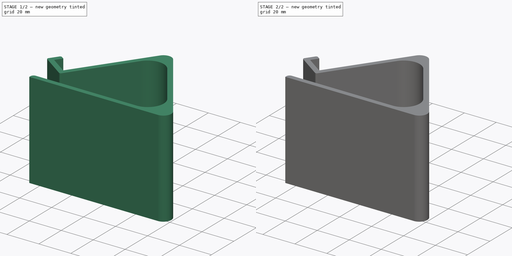
[diagram: build sequence overview — one tinted view per stage of 2, left to right]
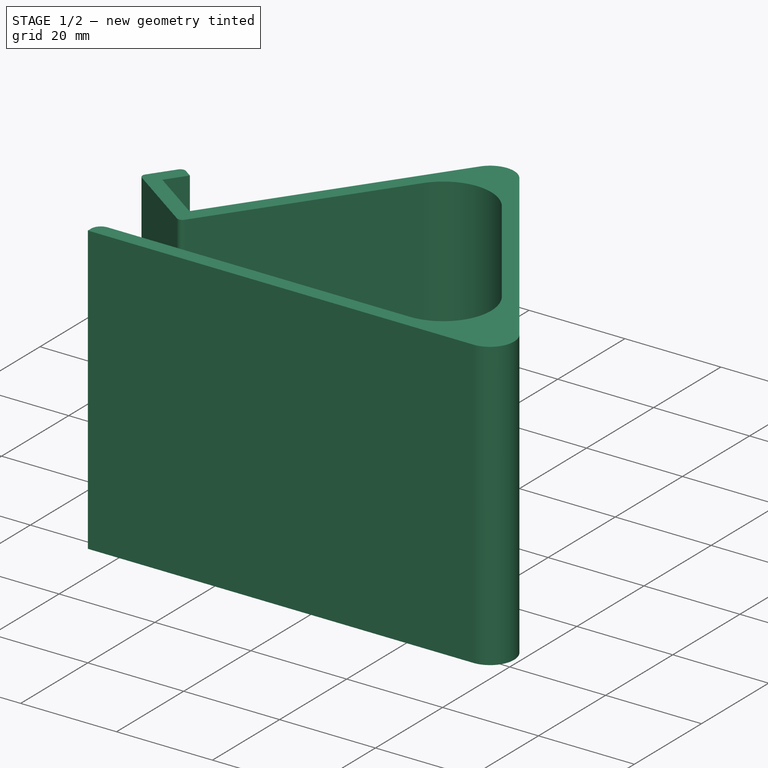
[diagram: stage 1 of 2 — iso view after this stage's code; geometry added in this stage tinted green]
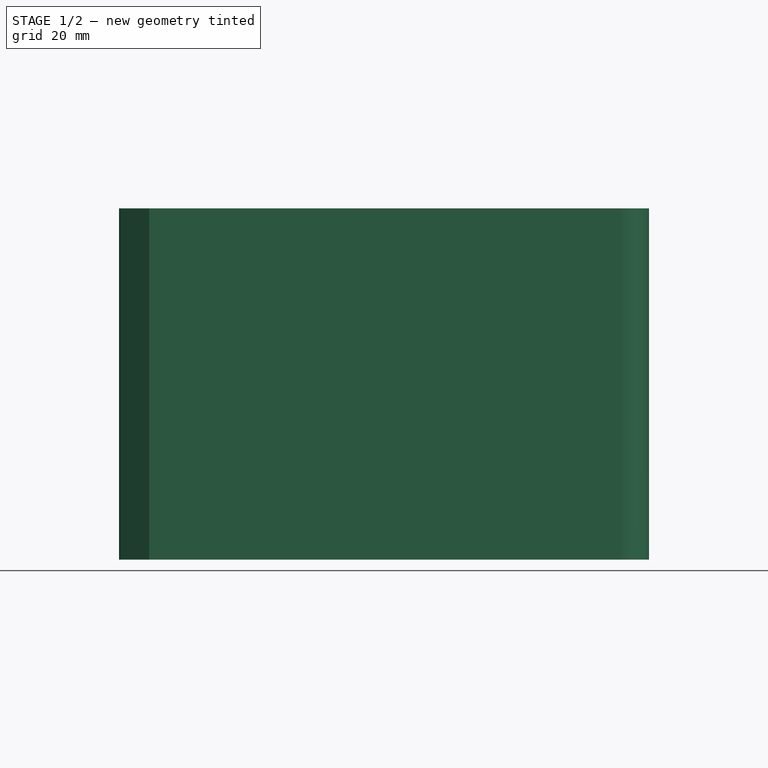
[diagram: stage 1 of 2 — front view after this stage's code; geometry added in this stage tinted green]
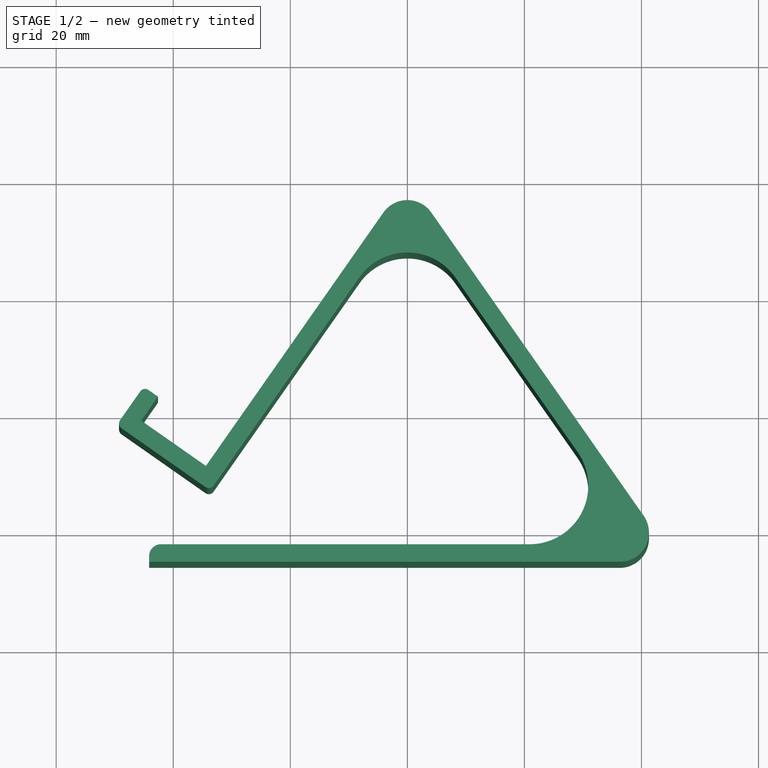
[diagram: stage 1 of 2 — top view after this stage's code; geometry added in this stage tinted green]
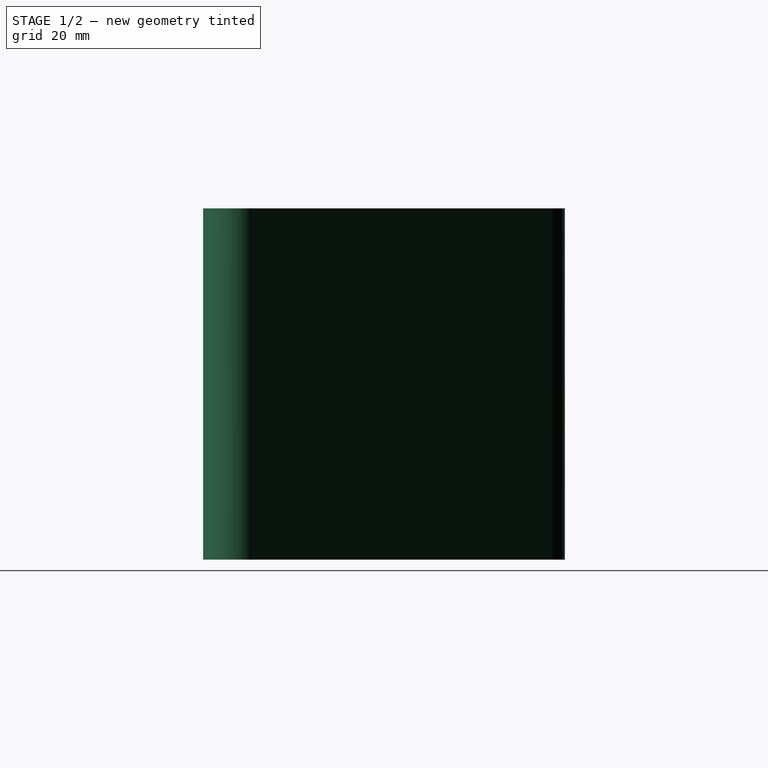
[diagram: stage 1 of 2 — right view after this stage's code; geometry added in this stage tinted green]
FCSTD DOCUMENT  (FreeCAD 0.20R29603 (Git))
Label: phone holder
License: All rights reserved
LicenseURL: http://en.wikipedia.org/wiki/All_rights_reserved
objects: Sketcher::SketchObject×2, PartDesign::Pad×1, PartDesign::Pocket×1, PartDesign::Body×1
note: 7 computed .brp shape members not serialized (recipe doc carries the construction recipe); baked Part::Feature solids carry a one-line shape summary decoded from their .brp

FEATURE [Sketcher::SketchObject] Sketch
  FullyConstrained = true
  MapMode = 5
  Support = -> [XY_Plane]
  sketch-geometry (29):
    g0: LineSegment StartX=-4.09576 StartY=-5.84935 StartZ=0 EndX=-34.4146 EndY=-49.1491 EndZ=0
    g1: LineSegment StartX=-34.4146 StartY=-49.1491 StartZ=0 EndX=-45.4731 EndY=-41.4058 EndZ=0
    g2: LineSegment StartX=-45.4731 StartY=-41.4058 StartZ=0 EndX=-42.6053 EndY=-37.3101 EndZ=0
    g3: LineSegment StartX=-42.6053 StartY=-37.3101 StartZ=0 EndX=-44.2436 EndY=-36.1629 EndZ=0
    g4: LineSegment StartX=-45.6363 StartY=-36.4085 StartZ=0 EndX=-49.0777 EndY=-41.3234 EndZ=0
    g5: LineSegment StartX=-48.8322 StartY=-42.7161 StartZ=0 EndX=-34.497 EndY=-52.7537 EndZ=0
    g6: LineSegment StartX=-33.1043 StartY=-52.5082 StartZ=0 EndX=-8.19152 EndY=-16.929 EndZ=0
    g7: LineSegment StartX=8.19152 StartY=-16.929 StartZ=0 EndX=29.1049 EndY=-46.7964 EndZ=0
    g8: LineSegment StartX=20.9133 StartY=-62.5322 StartZ=0 EndX=-42.1139 EndY=-62.5322 EndZ=0
    g9: LineSegment StartX=-44.1139 StartY=-64.5322 StartZ=0 EndX=-44.1139 EndY=-65.5322 EndZ=0
    g10: LineSegment StartX=-44.1139 StartY=-65.5322 StartZ=0 EndX=36.2812 EndY=-65.5322 EndZ=0
    g11: LineSegment StartX=40.377 StartY=-57.6643 StartZ=0 EndX=4.09576 EndY=-5.84935 EndZ=0
    g12: GeomPoint X=-31.9571 Y=-50.8699 Z=0
    g13: LineSegment StartX=-31.9571 StartY=-50.8699 StartZ=0 EndX=-34.4146 EndY=-49.1491 EndZ=0
    g14: ArcOfCircle CenterX=-1.2e-15 CenterY=-22.6648 CenterZ=0 NormalX=0 NormalY=0 NormalZ=1 AngleXU=0 Radius=10 StartAngle=0.610865 EndAngle=2.53073
    g15: ArcOfCircle CenterX=20.9133 CenterY=-52.5322 CenterZ=0 NormalX=0 NormalY=0 NormalZ=1 AngleXU=0 Radius=10 StartAngle=4.71239 EndAngle=6.89405
    g16: GeomPoint X=40.1232 Y=-62.5322 Z=0
    g17: ArcOfCircle CenterX=-42.1139 CenterY=-64.5322 CenterZ=0 NormalX=0 NormalY=0 NormalZ=1 AngleXU=0 Radius=2 StartAngle=1.5708 EndAngle=3.14159
    g18: GeomPoint X=-44.1139 Y=-62.5322 Z=0
    g19: ArcOfCircle CenterX=-33.9234 CenterY=-51.9346 CenterZ=0 NormalX=0 NormalY=0 NormalZ=1 AngleXU=0 Radius=1 StartAngle=4.10152 EndAngle=5.67232
    g20: GeomPoint X=-33.6779 Y=-53.3273 Z=0
    g21: ArcOfCircle CenterX=-48.2586 CenterY=-41.897 CenterZ=0 NormalX=0 NormalY=0 NormalZ=1 AngleXU=0 Radius=1 StartAngle=2.53073 EndAngle=4.10152
    g22: GeomPoint X=-49.6513 Y=-42.1426 Z=0
    g23: ArcOfCircle CenterX=-44.8171 CenterY=-36.9821 CenterZ=0 NormalX=0 NormalY=0 NormalZ=1 AngleXU=0 Radius=1 StartAngle=0.959931 EndAngle=2.53073
    g24: GeomPoint X=-45.0627 Y=-35.5894 Z=0
    g25: ArcOfCircle CenterX=36.2812 CenterY=-60.5322 CenterZ=0 NormalX=0 NormalY=0 NormalZ=1 AngleXU=0 Radius=5 StartAngle=4.71239 EndAngle=6.89405
    g26: GeomPoint X=45.8861 Y=-65.5322 Z=0
    g27: ArcOfCircle CenterX=2.093e-13 CenterY=-8.71723 CenterZ=0 NormalX=0 NormalY=0 NormalZ=1 AngleXU=0 Radius=5 StartAngle=0.610865 EndAngle=2.53073
    g28: GeomPoint X=0 Y=0 Z=0
  constraints (68):
    c: Coincident(g-1,g28)
    c: Coincident(g0,g1)
    c: Coincident(g1,g2)
    c: Coincident(g2,g3)
    c: Horizontal(g8)
    c: Coincident(g9,g10)
    c: Horizontal(g10)
    c: Distance(g28,g26) = 80
    c: DistanceX(g10,g26) = 90
    c: Vertical(g9)
    c: DistanceY(g9,g18) = 3
    c: Distance(g1) = 13.5
    c: Perpendicular(g1,g0)
    c: Perpendicular(g2,g1)
    c: Perpendicular(g2,g3)
    c: Perpendicular(g4,g3)
    c: Perpendicular(g5,g4)
    c: Distance(g2) = 5
    c: Distance(g3,g24) = 3
    c: Distance(g24,g22) = 8
    c: Parallel(g6,g0)
    c: PointOnObject(g12,g6)
    c: Coincident(g13,g12)
    c: Coincident(g13,g0)
    c: Perpendicular(g6,g13)
    c: Distance(g13) = 3
    c: Parallel(g11,g7)
    c: Symmetric(g6,g7,g-2)
    c: Tangent(g14,g6) = 1.5708
    c: Tangent(g14,g7) = 1.5708
    c: Distance(g0,g28) = 60
    c: PointOnObject(g16,g8)
    c: PointOnObject(g16,g7)
    c: Tangent(g8,g15) = 1.5708
    c: Tangent(g7,g15) = 1.5708
    c: Equal(g14,g15)
    c: PointOnObject(g18,g9)
    c: PointOnObject(g18,g8)
    c: Tangent(g9,g17) = -1.5708
    c: Tangent(g8,g17) = -1.5708
    c: DistanceY(g9,g9) = 1
    c: PointOnObject(g20,g5)
    c: PointOnObject(g20,g6)
    c: Tangent(g5,g19) = -1.5708
    c: Tangent(g6,g19) = -1.5708
    c: PointOnObject(g22,g4)
    c: PointOnObject(g22,g5)
    c: Tangent(g4,g21) = -1.5708
    c: Tangent(g5,g21) = -1.5708
    c: PointOnObject(g24,g4)
    c: PointOnObject(g24,g3)
    c: Tangent(g4,g23) = -1.5708
    c: Tangent(g3,g23) = -1.5708
    c: Equal(g23,g21)
    c: Equal(g21,g19)
    c: Diameter(g23) = 2
    c: Diameter(g14) = 20
    c: PointOnObject(g26,g11)
    c: PointOnObject(g26,g10)
    c: Tangent(g11,g25) = -1.5708
    c: Tangent(g10,g25) = -1.5708
    c: PointOnObject(g28,g11)
    c: PointOnObject(g28,g0)
    c: Tangent(g11,g27) = -1.5708
    c: Tangent(g0,g27) = -1.5708
    c: Diameter(g27) = 10
    c: Angle(g0,g11) = 1.22173
    c: Equal(g25,g27)
FEATURE [PartDesign::Pad] Pad
  Direction = (0,0,1)
  Length = 60
  Length2 = 10
  Profile = -> Sketch
  ReferenceAxis = -> Sketch [N_Axis]
  Type = 0
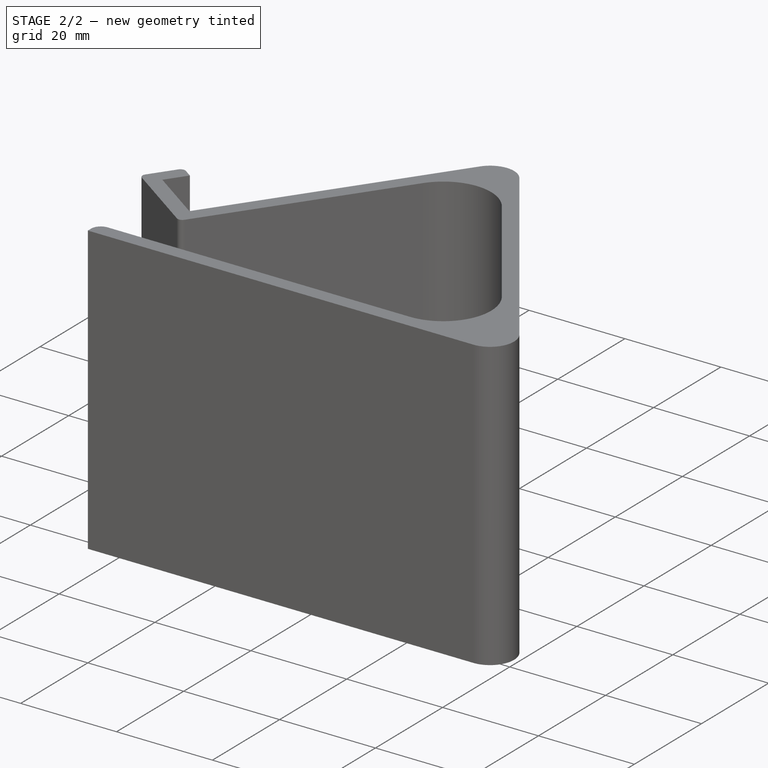
[diagram: stage 2 of 2 — iso view after this stage's code; geometry added in this stage tinted green]
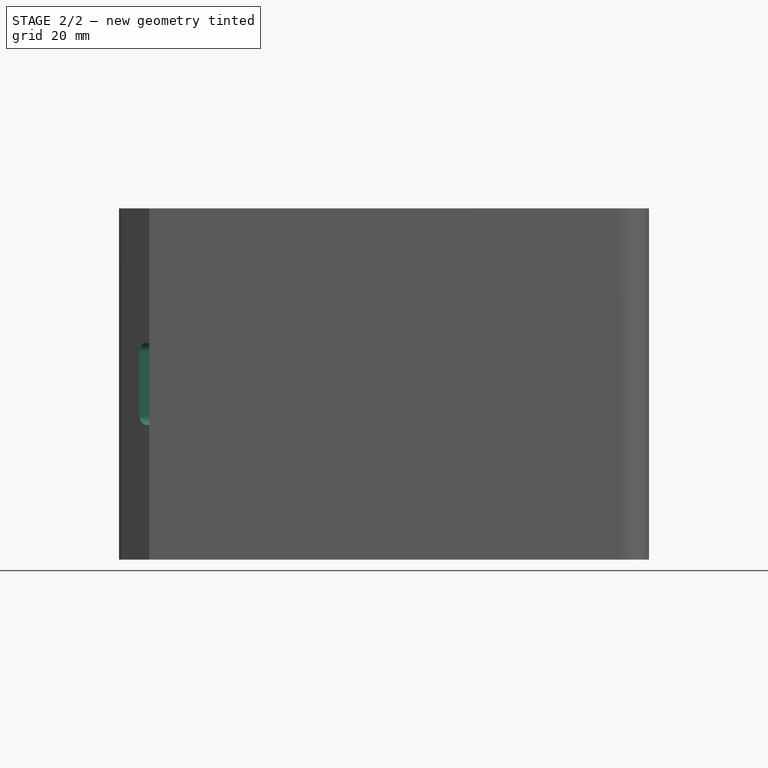
[diagram: stage 2 of 2 — front view after this stage's code; geometry added in this stage tinted green]
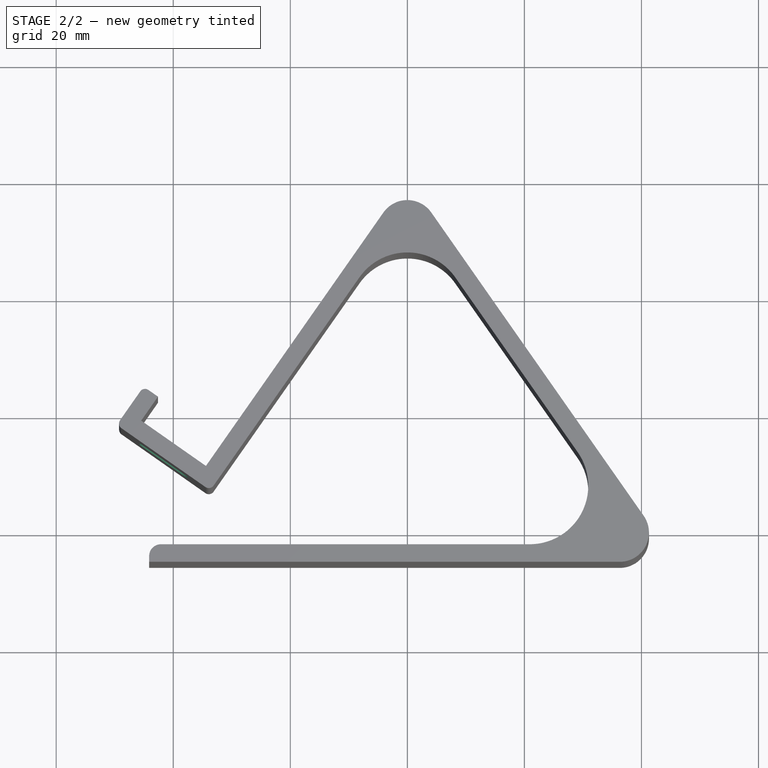
[diagram: stage 2 of 2 — top view after this stage's code; geometry added in this stage tinted green]
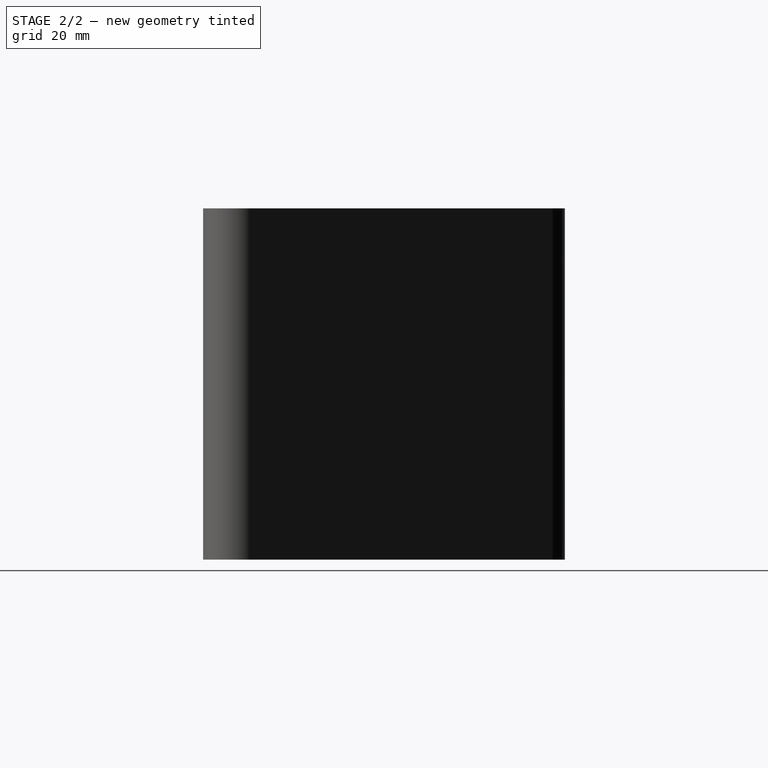
[diagram: stage 2 of 2 — right view after this stage's code; geometry added in this stage tinted green]
FEATURE [Sketcher::SketchObject] Sketch001
  ExternalGeometry = -> [Pad]
  FullyConstrained = true
  MapMode = 5
  Placement = pos=(-34.4146,-49.1491,0) rot=(0.217607,0.690162,0.690162;2.71306rad)
  Support = -> [Pad]
  sketch-geometry (13):
    g0: LineSegment StartX=1.75 StartY=24.5 StartZ=0 EndX=1.75 EndY=35.5 EndZ=0
    g1: LineSegment StartX=3.25 StartY=37 StartZ=0 EndX=10.25 EndY=37 EndZ=0
    g2: LineSegment StartX=11.75 StartY=35.5 StartZ=0 EndX=11.75 EndY=24.5 EndZ=0
    g3: LineSegment StartX=10.25 StartY=23 StartZ=0 EndX=3.25 EndY=23 EndZ=0
    g4: GeomPoint X=6.75 Y=30 Z=0
    g5: ArcOfCircle CenterX=3.25 CenterY=35.5 CenterZ=0 NormalX=0 NormalY=0 NormalZ=1 AngleXU=0 Radius=1.5 StartAngle=1.5708 EndAngle=3.14159
    g6: GeomPoint X=1.75 Y=37 Z=0
    g7: ArcOfCircle CenterX=3.25 CenterY=24.5 CenterZ=0 NormalX=0 NormalY=0 NormalZ=1 AngleXU=0 Radius=1.5 StartAngle=3.14159 EndAngle=4.71239
    g8: GeomPoint X=1.75 Y=23 Z=0
    g9: ArcOfCircle CenterX=10.25 CenterY=24.5 CenterZ=0 NormalX=0 NormalY=0 NormalZ=1 AngleXU=0 Radius=1.5 StartAngle=4.71239 EndAngle=6.28319
    g10: GeomPoint X=11.75 Y=23 Z=0
    g11: ArcOfCircle CenterX=10.25 CenterY=35.5 CenterZ=0 NormalX=0 NormalY=0 NormalZ=1 AngleXU=0 Radius=1.5 StartAngle=1.7e-15 EndAngle=1.5708
    g12: GeomPoint X=11.75 Y=37 Z=0
  constraints (28):
    c: Horizontal(g1)
    c: Horizontal(g3)
    c: Vertical(g0)
    c: Vertical(g2)
    c: Symmetric(g12,g8,g4)
    c: Symmetric(g-4,g-3,g4)
    c: DistanceY(g8,g6) = 14
    c: DistanceX(g6,g12) = 10
    c: PointOnObject(g6,g1)
    c: PointOnObject(g6,g0)
    c: Tangent(g1,g5) = 1.5708
    c: Tangent(g0,g5) = 1.5708
    c: PointOnObject(g8,g0)
    c: PointOnObject(g8,g3)
    c: Tangent(g0,g7) = 1.5708
    c: Tangent(g3,g7) = 1.5708
    c: PointOnObject(g10,g3)
    c: PointOnObject(g10,g2)
    c: Tangent(g3,g9) = 1.5708
    c: Tangent(g2,g9) = 1.5708
    c: PointOnObject(g12,g2)
    c: PointOnObject(g12,g1)
    c: Tangent(g2,g11) = 1.5708
    c: Tangent(g1,g11) = 1.5708
    c: Equal(g11,g5)
    c: Equal(g5,g7)
    c: Equal(g7,g9)
    c: Diameter(g5) = 3
FEATURE [PartDesign::Pocket] Pocket
  BaseFeature = -> Pad
  Direction = (-0.573576,-0.819152,0)
  Length = 5
  Length2 = 5
  Profile = -> Sketch001
  ReferenceAxis = -> Sketch001 [N_Axis]
  Type = 1
FEATURE [PartDesign::Body] Body
  Group = -> [Sketch,Pad,Sketch001,Pocket]
  Origin = -> Origin
  Tip = -> Pocket
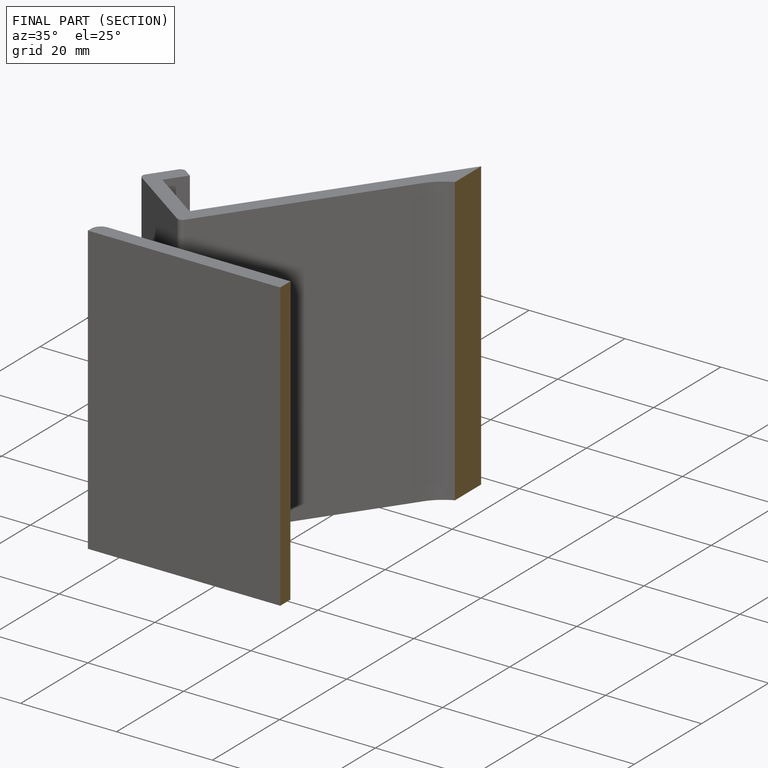
[diagram: finished part — half-section view (interior)]
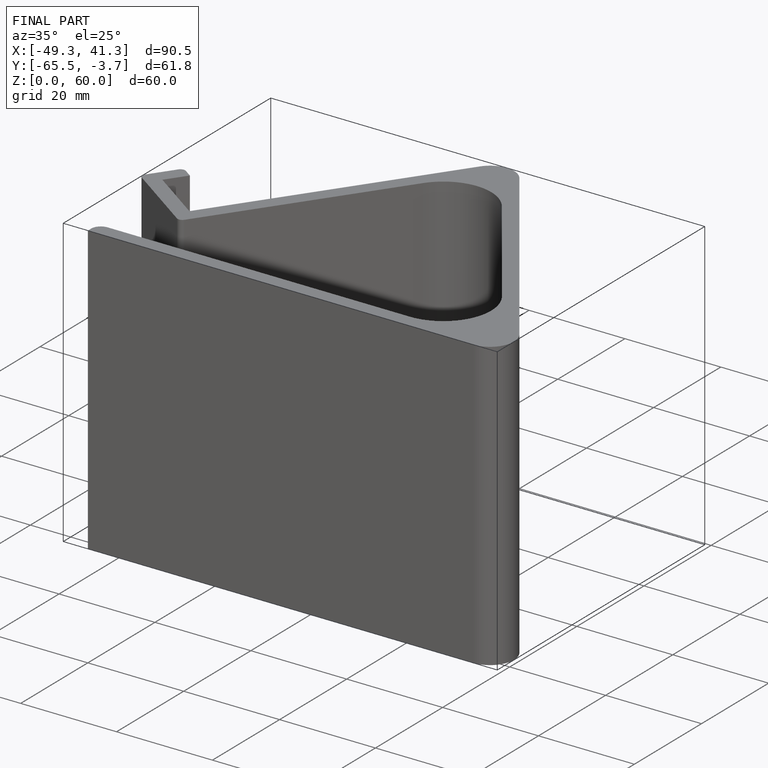
[diagram: finished part — iso view with bounding-box wireframe]
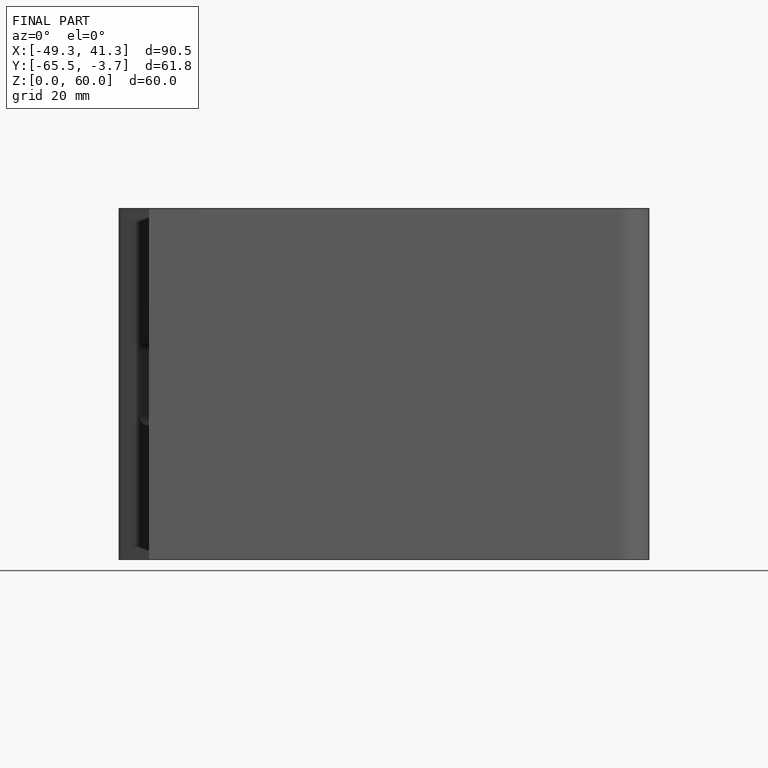
[diagram: finished part — front view with bounding-box wireframe]
